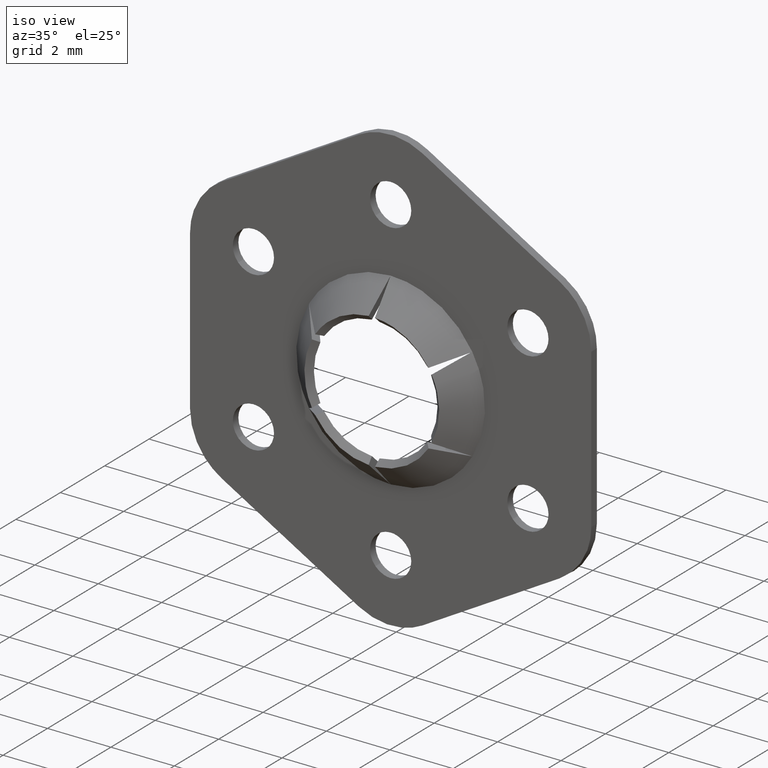
[diagram: clean part render]
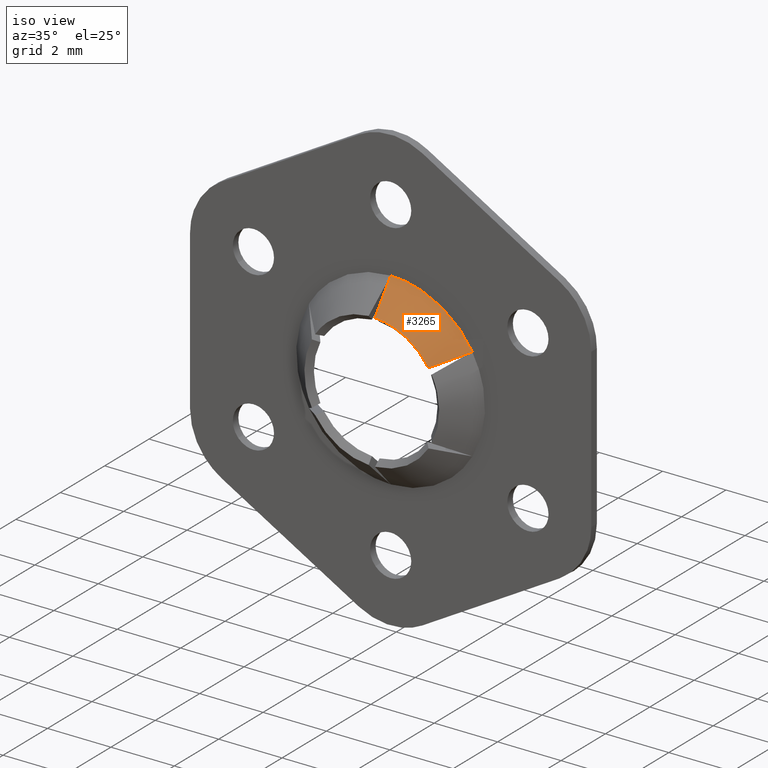
[diagram: same view with one face highlighted and labeled with its STEP entity id]
A machine part, iso view. The second image highlights one B-rep face of the part: STEP entity #3265.
In plain terms, the highlighted face is a freeform B-spline surface patch.
Its self-contained STEP definition (entity closure, byte-faithful):
#2487=CARTESIAN_POINT('',(2.577964239538090,-0.249999999998844,1.488388347658500));
#2488=VERTEX_POINT('',#2487);
#2960=CARTESIAN_POINT('',(1.789805515215440,-1.100000000000000,1.148814749844692));
#2961=VERTEX_POINT('',#2960);
#2962=CARTESIAN_POINT('',(2.577964239538090,-0.249999999998844,1.488388347658500));
#2963=CARTESIAN_POINT('',(2.315604205656547,-0.533728600864801,1.375352054487636));
#2964=CARTESIAN_POINT('',(2.053029985185274,-0.817221731978954,1.262223480271556));
#2965=CARTESIAN_POINT('',(1.789805515215442,-1.100000000000003,1.148814749844692));
#2966=QUASI_UNIFORM_CURVE('',3,(#2962,#2963,#2964,#2965),.UNSPECIFIED.,.F.,.U.);
#2967=EDGE_CURVE('',#2488,#2961,#2966,.T.);
#3029=CARTESIAN_POINT('',(0.100000000000080,-1.100000000000000,2.124424418932415));
#3030=VERTEX_POINT('',#3029);
#3031=CARTESIAN_POINT('',(-2.842171E-014,-0.249999999998912,2.976776695317000));
#3032=VERTEX_POINT('',#3031);
#3033=CARTESIAN_POINT('',(0.100000000000079,-1.100000000000001,2.124424418932415));
#3034=CARTESIAN_POINT('',(0.066602606575781,-0.817221731978974,2.409087862037393));
#3035=CARTESIAN_POINT('',(0.033287715505195,-0.533728600864843,2.693048094452431));
#3036=CARTESIAN_POINT('',(2.853935E-014,-0.249999999998902,2.976776695316997));
#3037=QUASI_UNIFORM_CURVE('',3,(#3033,#3034,#3035,#3036),.UNSPECIFIED.,.F.,.U.);
#3038=EDGE_CURVE('',#3030,#3032,#3037,.T.);
#3134=CARTESIAN_POINT('',(2.577964239538090,-0.249999999998844,1.488388347658500));
#3135=CARTESIAN_POINT('',(2.480565960134680,-0.249999999999075,1.657125719866943));
#3136=CARTESIAN_POINT('',(2.247733641679569,-0.249999999999468,1.982008570843616));
#3137=CARTESIAN_POINT('',(1.835204149820012,-0.249999999999775,2.365237108285071));
#3138=CARTESIAN_POINT('',(1.408540168147218,-0.249999999999832,2.635391117253291));
#3139=CARTESIAN_POINT('',(1.050801748694673,-0.249999999999744,2.792209644090686));
#3140=CARTESIAN_POINT('',(0.709073968201908,-0.249999999999561,2.897401942950004));
#3141=CARTESIAN_POINT('',(0.373422372063697,-0.249999999999310,2.961316109979421));
#3142=CARTESIAN_POINT('',(0.121767826653444,-0.249999999999051,2.976779486493884));
#3143=CARTESIAN_POINT('',(-2.842171E-014,-0.249999999998912,2.976776695317000));
#3144=B_SPLINE_CURVE_WITH_KNOTS('',3,(#3134,#3135,#3136,#3137,#3138,#3139,#3140,#3141,#3142,#3143),.UNSPECIFIED.,.F.,.U.,(4,1,1,1,1,1,1,4),(3.445173E-009,0.584489437384949,1.193336524024349,1.680406898866456,2.094422417475442,2.362315293801968,2.751977501904126,3.117281959204577),.UNSPECIFIED.);
#3145=EDGE_CURVE('',#2488,#3032,#3144,.T.);
#3234=CARTESIAN_POINT('',(1.855694536283373,-1.121250000000029,0.994806741389297));
#3235=CARTESIAN_POINT('',(2.642762786252815,-0.228218749998814,1.416740839751870));
#3236=CARTESIAN_POINT('',(1.226111581113501,-1.121250000000029,2.169219420191880));
#3237=CARTESIAN_POINT('',(1.746150562500523,-0.228218749998814,3.089265095526796));
#3238=CARTESIAN_POINT('',(-0.104761842545211,-1.121250000000029,2.102918833681435));
#3239=CARTESIAN_POINT('',(-0.149195189986528,-0.228218749998814,2.994843993717945));
#3247=(BOUNDED_SURFACE()B_SPLINE_SURFACE(1,2,((#3234,#3236,#3238),(#3235,#3237,#3239)),.UNSPECIFIED.,.F.,.F.,.U.)B_SPLINE_SURFACE_WITH_KNOTS((2,2),(3,3),(0.0,1.0),(0.0,3.476529003573385),.UNSPECIFIED.)GEOMETRIC_REPRESENTATION_ITEM()RATIONAL_B_SPLINE_SURFACE(((1.0,0.844263257211363,0.998266083634709),(1.0,0.844263257211363,0.998266083634709)))REPRESENTATION_ITEM('')SURFACE());
#3248=ORIENTED_EDGE('',*,*,#2967,.F.);
#3249=ORIENTED_EDGE('',*,*,#3145,.T.);
#3250=ORIENTED_EDGE('',*,*,#3038,.F.);
#3251=CARTESIAN_POINT('',(1.789805515215440,-1.100000000000000,1.148814749844692));
#3252=CARTESIAN_POINT('',(1.709981926291027,-1.099999999999998,1.273217296170024));
#3253=CARTESIAN_POINT('',(1.570675625511967,-1.100000000000004,1.447243959920942));
#3254=CARTESIAN_POINT('',(1.316833672542504,-1.100000000000000,1.678805530214239));
#3255=CARTESIAN_POINT('',(1.063524928350183,-1.099999999999996,1.852775150750631));
#3256=CARTESIAN_POINT('',(0.732651453686043,-1.100000000000000,2.007726706742270));
#3257=CARTESIAN_POINT('',(0.410449847277802,-1.100000000000007,2.095754143816026));
#3258=CARTESIAN_POINT('',(0.189640618718837,-1.099999999999983,2.120205552175838));
#3259=CARTESIAN_POINT('',(0.100000000000080,-1.100000000000000,2.124424418932415));
#3260=B_SPLINE_CURVE_WITH_KNOTS('',3,(#3251,#3252,#3253,#3254,#3255,#3256,#3257,#3258,#3259),.UNSPECIFIED.,.F.,.U.,(4,1,1,1,1,1,4),(4.279063E-009,0.443424645893273,0.665138962927935,1.029376235129204,1.361947303799539,1.757865047743780,2.027086262448282),.UNSPECIFIED.);
#3261=EDGE_CURVE('',#2961,#3030,#3260,.T.);
#3262=ORIENTED_EDGE('',*,*,#3261,.F.);
#3263=EDGE_LOOP('',(#3248,#3249,#3250,#3262));
#3264=FACE_OUTER_BOUND('',#3263,.T.);
#3265=ADVANCED_FACE('',(#3264),#3247,.T.);